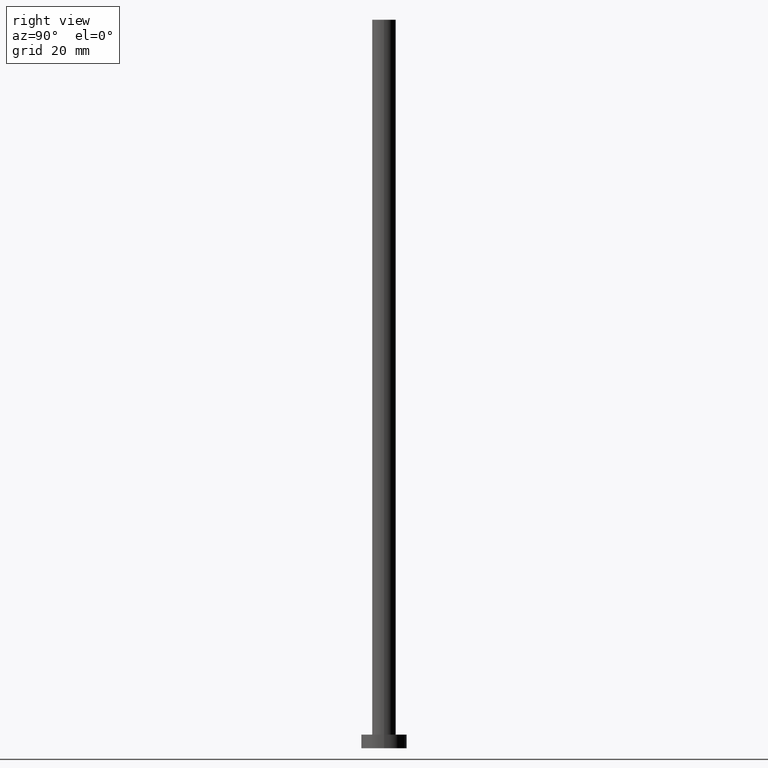
[diagram: clean part render]
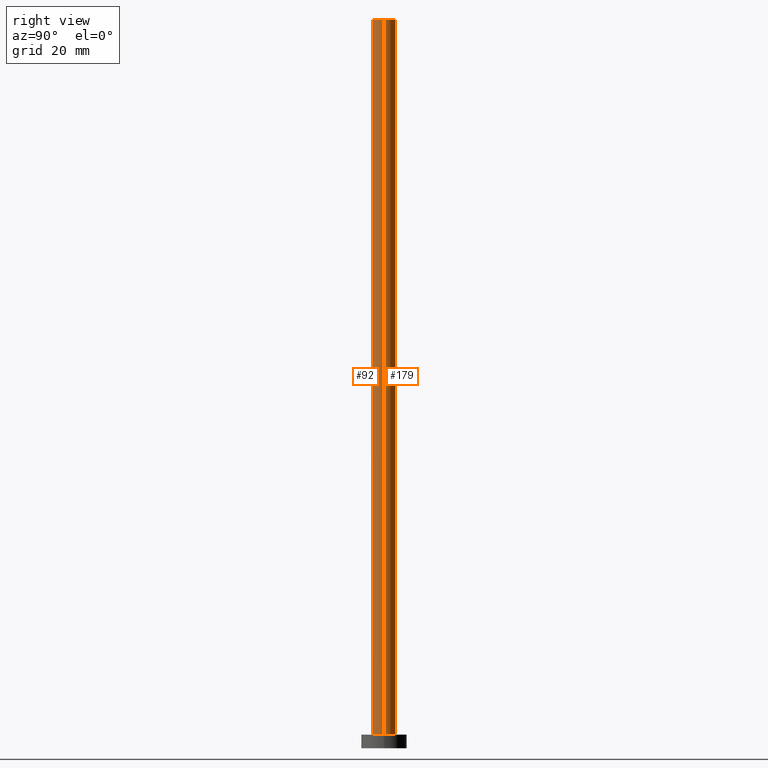
[diagram: same view with one multi-face feature highlighted, each face labeled with its STEP entity id]
A machine part, right view. The highlighted faces form ONE feature: a constant-radius fillet chain: 2 tangent blend faces with common blend radius 2.6 mm. The faces share edges in the B-rep.
Their STEP definitions:
[1] entity #92 (Cylinder):
#4 = VERTEX_POINT ( 'NONE', #106 ) ;
#7 = ORIENTED_EDGE ( 'NONE', *, *, #155, .T. ) ;
#9 = ORIENTED_EDGE ( 'NONE', *, *, #44, .T. ) ;
#17 = CARTESIAN_POINT ( 'NONE',  ( 0.000000000000000000, 0.000000000000000000, 160.0000000000000000 ) ) ;
#19 = DIRECTION ( 'NONE',  ( 0.000000000000000000, 0.000000000000000000, 1.000000000000000000 ) ) ;
#21 = AXIS2_PLACEMENT_3D ( 'NONE', #17, #250, #178 ) ;
#26 = LINE ( 'NONE', #132, #65 ) ;
#32 = DIRECTION ( 'NONE',  ( 0.000000000000000000, 0.000000000000000000, 1.000000000000000000 ) ) ;
#34 = CARTESIAN_POINT ( 'NONE',  ( 2.600000000000000089, 3.184081677783118191E-16, 160.0000000000000000 ) ) ;
#44 = EDGE_CURVE ( 'NONE', #4, #190, #26, .T. ) ;
#59 = AXIS2_PLACEMENT_3D ( 'NONE', #112, #19, #174 ) ;
#60 = LINE ( 'NONE', #34, #166 ) ;
#65 = VECTOR ( 'NONE', #71, 1000.000000000000000 ) ;
#66 = VERTEX_POINT ( 'NONE', #108 ) ;
#71 = DIRECTION ( 'NONE',  ( -0.000000000000000000, -0.000000000000000000, -1.000000000000000000 ) ) ;
#85 = ORIENTED_EDGE ( 'NONE', *, *, #138, .F. ) ;
#88 = AXIS2_PLACEMENT_3D ( 'NONE', #133, #32, #217 ) ;
#89 = EDGE_LOOP ( 'NONE', ( #85, #151, #9, #7 ) ) ;
#92 = ADVANCED_FACE ( 'NONE', ( #136 ), #235, .T. ) ;
#106 = CARTESIAN_POINT ( 'NONE',  ( -2.600000000000000089, 0.000000000000000000, 160.0000000000000000 ) ) ;
#108 = CARTESIAN_POINT ( 'NONE',  ( 2.600000000000000089, 3.184081677783118191E-16, 160.0000000000000000 ) ) ;
#111 = CARTESIAN_POINT ( 'NONE',  ( -2.600000000000000089, 0.000000000000000000, 3.000000000000000000 ) ) ;
#112 = CARTESIAN_POINT ( 'NONE',  ( 0.000000000000000000, 0.000000000000000000, 3.000000000000000000 ) ) ;
#132 = CARTESIAN_POINT ( 'NONE',  ( -2.600000000000000089, 0.000000000000000000, 160.0000000000000000 ) ) ;
#133 = CARTESIAN_POINT ( 'NONE',  ( 0.000000000000000000, 0.000000000000000000, 160.0000000000000000 ) ) ;
#136 = FACE_OUTER_BOUND ( 'NONE', #89, .T. ) ;
#138 = EDGE_CURVE ( 'NONE', #66, #246, #60, .T. ) ;
#151 = ORIENTED_EDGE ( 'NONE', *, *, #191, .F. ) ;
#155 = EDGE_CURVE ( 'NONE', #190, #246, #183, .T. ) ;
#166 = VECTOR ( 'NONE', #195, 1000.000000000000000 ) ;
#174 = DIRECTION ( 'NONE',  ( 1.000000000000000000, 0.000000000000000000, 0.000000000000000000 ) ) ;
#178 = DIRECTION ( 'NONE',  ( -1.000000000000000000, 0.000000000000000000, 0.000000000000000000 ) ) ;
#183 = CIRCLE ( 'NONE', #59, 2.600000000000000089 ) ;
#187 = CIRCLE ( 'NONE', #88, 2.600000000000000089 ) ;
#190 = VERTEX_POINT ( 'NONE', #111 ) ;
#191 = EDGE_CURVE ( 'NONE', #4, #66, #187, .T. ) ;
#195 = DIRECTION ( 'NONE',  ( -0.000000000000000000, -0.000000000000000000, -1.000000000000000000 ) ) ;
#217 = DIRECTION ( 'NONE',  ( 1.000000000000000000, 0.000000000000000000, 0.000000000000000000 ) ) ;
#219 = CARTESIAN_POINT ( 'NONE',  ( 2.600000000000000089, 3.184081677783118191E-16, 3.000000000000000000 ) ) ;
#235 = CYLINDRICAL_SURFACE ( 'NONE', #21, 2.600000000000000089 ) ;
#246 = VERTEX_POINT ( 'NONE', #219 ) ;
#250 = DIRECTION ( 'NONE',  ( -0.000000000000000000, -0.000000000000000000, -1.000000000000000000 ) ) ;
[2] entity #179 (Cylinder):
#1 = EDGE_CURVE ( 'NONE', #246, #190, #41, .T. ) ;
#4 = VERTEX_POINT ( 'NONE', #106 ) ;
#6 = EDGE_CURVE ( 'NONE', #66, #4, #124, .T. ) ;
#26 = LINE ( 'NONE', #132, #65 ) ;
#29 = DIRECTION ( 'NONE',  ( 1.000000000000000000, 0.000000000000000000, 0.000000000000000000 ) ) ;
#34 = CARTESIAN_POINT ( 'NONE',  ( 2.600000000000000089, 3.184081677783118191E-16, 160.0000000000000000 ) ) ;
#41 = CIRCLE ( 'NONE', #76, 2.600000000000000089 ) ;
#44 = EDGE_CURVE ( 'NONE', #4, #190, #26, .T. ) ;
#51 = AXIS2_PLACEMENT_3D ( 'NONE', #189, #90, #110 ) ;
#52 = AXIS2_PLACEMENT_3D ( 'NONE', #95, #96, #157 ) ;
#53 = ORIENTED_EDGE ( 'NONE', *, *, #6, .F. ) ;
#60 = LINE ( 'NONE', #34, #166 ) ;
#61 = CYLINDRICAL_SURFACE ( 'NONE', #52, 2.600000000000000089 ) ;
#65 = VECTOR ( 'NONE', #71, 1000.000000000000000 ) ;
#66 = VERTEX_POINT ( 'NONE', #108 ) ;
#71 = DIRECTION ( 'NONE',  ( -0.000000000000000000, -0.000000000000000000, -1.000000000000000000 ) ) ;
#76 = AXIS2_PLACEMENT_3D ( 'NONE', #125, #208, #29 ) ;
#81 = EDGE_LOOP ( 'NONE', ( #53, #212, #243, #241 ) ) ;
#90 = DIRECTION ( 'NONE',  ( 0.000000000000000000, 0.000000000000000000, 1.000000000000000000 ) ) ;
#95 = CARTESIAN_POINT ( 'NONE',  ( 0.000000000000000000, 0.000000000000000000, 160.0000000000000000 ) ) ;
#96 = DIRECTION ( 'NONE',  ( -0.000000000000000000, -0.000000000000000000, -1.000000000000000000 ) ) ;
#106 = CARTESIAN_POINT ( 'NONE',  ( -2.600000000000000089, 0.000000000000000000, 160.0000000000000000 ) ) ;
#108 = CARTESIAN_POINT ( 'NONE',  ( 2.600000000000000089, 3.184081677783118191E-16, 160.0000000000000000 ) ) ;
#110 = DIRECTION ( 'NONE',  ( 1.000000000000000000, 0.000000000000000000, 0.000000000000000000 ) ) ;
#111 = CARTESIAN_POINT ( 'NONE',  ( -2.600000000000000089, 0.000000000000000000, 3.000000000000000000 ) ) ;
#124 = CIRCLE ( 'NONE', #51, 2.600000000000000089 ) ;
#125 = CARTESIAN_POINT ( 'NONE',  ( 0.000000000000000000, 0.000000000000000000, 3.000000000000000000 ) ) ;
#132 = CARTESIAN_POINT ( 'NONE',  ( -2.600000000000000089, 0.000000000000000000, 160.0000000000000000 ) ) ;
#138 = EDGE_CURVE ( 'NONE', #66, #246, #60, .T. ) ;
#157 = DIRECTION ( 'NONE',  ( -1.000000000000000000, 0.000000000000000000, 0.000000000000000000 ) ) ;
#166 = VECTOR ( 'NONE', #195, 1000.000000000000000 ) ;
#179 = ADVANCED_FACE ( 'NONE', ( #196 ), #61, .T. ) ;
#189 = CARTESIAN_POINT ( 'NONE',  ( 0.000000000000000000, 0.000000000000000000, 160.0000000000000000 ) ) ;
#190 = VERTEX_POINT ( 'NONE', #111 ) ;
#195 = DIRECTION ( 'NONE',  ( -0.000000000000000000, -0.000000000000000000, -1.000000000000000000 ) ) ;
#196 = FACE_OUTER_BOUND ( 'NONE', #81, .T. ) ;
#208 = DIRECTION ( 'NONE',  ( 0.000000000000000000, 0.000000000000000000, 1.000000000000000000 ) ) ;
#212 = ORIENTED_EDGE ( 'NONE', *, *, #138, .T. ) ;
#219 = CARTESIAN_POINT ( 'NONE',  ( 2.600000000000000089, 3.184081677783118191E-16, 3.000000000000000000 ) ) ;
#241 = ORIENTED_EDGE ( 'NONE', *, *, #44, .F. ) ;
#243 = ORIENTED_EDGE ( 'NONE', *, *, #1, .T. ) ;
#246 = VERTEX_POINT ( 'NONE', #219 ) ;